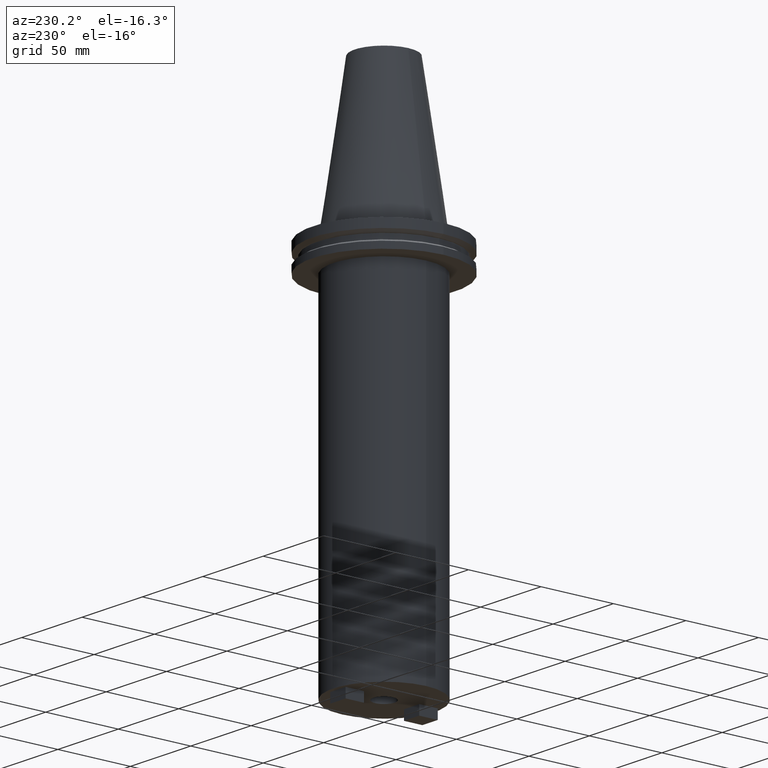
[diagram: clean part render]
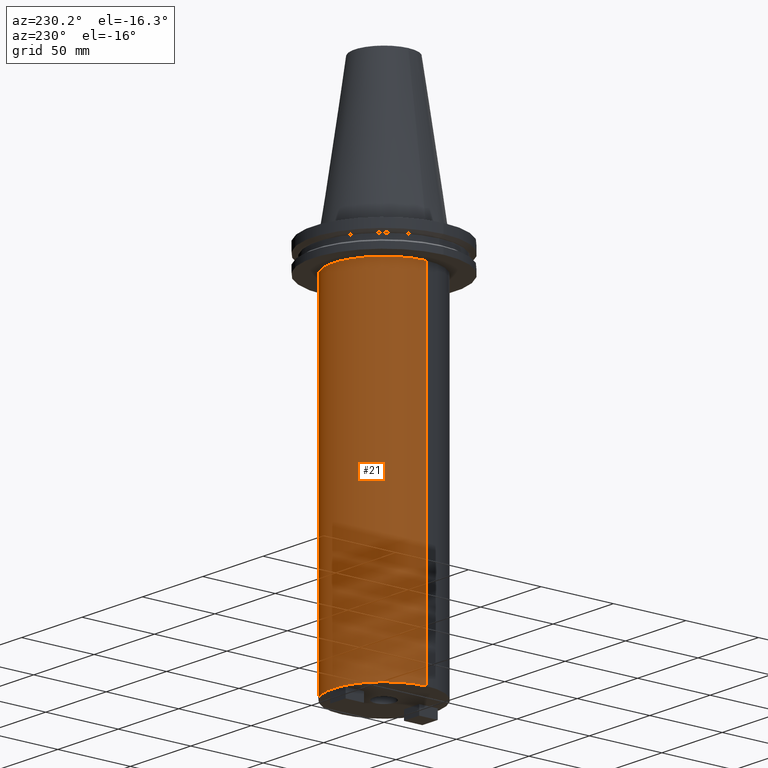
[diagram: same view with one face highlighted and labeled with its STEP entity id]
A machine part, auxiliary view. The second image highlights one B-rep face of the part: STEP entity #21.
In plain terms, the highlighted cylindrical surface (partial cylindrical patch) has radius 34.925 mm, axis along (-0, -0, 1).
Its self-contained STEP definition (entity closure, byte-faithful):
#2 = VERTEX_POINT ( 'NONE', #973 ) ;
#21 = ADVANCED_FACE ( 'NONE', ( #560 ), #796, .T. ) ;
#34 = ORIENTED_EDGE ( 'NONE', *, *, #977, .T. ) ;
#48 = CIRCLE ( 'NONE', #109, 34.92499999999999716 ) ;
#77 = CARTESIAN_POINT ( 'NONE',  ( 0.000000000000000000, 0.000000000000000000, -254.0000000000000000 ) ) ;
#109 = AXIS2_PLACEMENT_3D ( 'NONE', #77, #395, #948 ) ;
#132 = DIRECTION ( 'NONE',  ( -0.000000000000000000, -0.000000000000000000, 1.000000000000000000 ) ) ;
#139 = VERTEX_POINT ( 'NONE', #815 ) ;
#141 = DIRECTION ( 'NONE',  ( 1.000000000000000000, 0.000000000000000000, 0.000000000000000000 ) ) ;
#206 = LINE ( 'NONE', #519, #1007 ) ;
#222 = DIRECTION ( 'NONE',  ( -0.000000000000000000, -0.000000000000000000, 1.000000000000000000 ) ) ;
#318 = VERTEX_POINT ( 'NONE', #1008 ) ;
#325 = CARTESIAN_POINT ( 'NONE',  ( 0.000000000000000000, 0.000000000000000000, 101.5999999999999943 ) ) ;
#395 = DIRECTION ( 'NONE',  ( -0.000000000000000000, -0.000000000000000000, 1.000000000000000000 ) ) ;
#411 = EDGE_LOOP ( 'NONE', ( #34, #480, #728, #704 ) ) ;
#480 = ORIENTED_EDGE ( 'NONE', *, *, #907, .T. ) ;
#519 = CARTESIAN_POINT ( 'NONE',  ( -34.92499999999999716, 4.277078946022130887E-15, 101.5999999999999943 ) ) ;
#525 = CARTESIAN_POINT ( 'NONE',  ( -34.92499999999999716, 4.277078946022130887E-15, -254.0000000000000000 ) ) ;
#543 = CARTESIAN_POINT ( 'NONE',  ( 0.000000000000000000, 0.000000000000000000, -19.04999999999999716 ) ) ;
#550 = DIRECTION ( 'NONE',  ( -0.000000000000000000, -0.000000000000000000, 1.000000000000000000 ) ) ;
#560 = FACE_OUTER_BOUND ( 'NONE', #411, .T. ) ;
#565 = AXIS2_PLACEMENT_3D ( 'NONE', #543, #222, #141 ) ;
#618 = VECTOR ( 'NONE', #132, 1000.000000000000000 ) ;
#627 = CIRCLE ( 'NONE', #565, 34.92499999999999716 ) ;
#651 = VERTEX_POINT ( 'NONE', #525 ) ;
#704 = ORIENTED_EDGE ( 'NONE', *, *, #806, .F. ) ;
#728 = ORIENTED_EDGE ( 'NONE', *, *, #928, .F. ) ;
#754 = CARTESIAN_POINT ( 'NONE',  ( 34.92499999999999716, 0.000000000000000000, 101.5999999999999943 ) ) ;
#759 = AXIS2_PLACEMENT_3D ( 'NONE', #325, #550, #803 ) ;
#796 = CYLINDRICAL_SURFACE ( 'NONE', #759, 34.92499999999999716 ) ;
#803 = DIRECTION ( 'NONE',  ( 1.000000000000000000, 0.000000000000000000, 0.000000000000000000 ) ) ;
#806 = EDGE_CURVE ( 'NONE', #318, #2, #997, .T. ) ;
#815 = CARTESIAN_POINT ( 'NONE',  ( -34.92499999999999716, 4.277078946022130887E-15, -19.04999999999999716 ) ) ;
#835 = DIRECTION ( 'NONE',  ( -0.000000000000000000, -0.000000000000000000, 1.000000000000000000 ) ) ;
#907 = EDGE_CURVE ( 'NONE', #651, #139, #206, .T. ) ;
#928 = EDGE_CURVE ( 'NONE', #2, #139, #627, .T. ) ;
#948 = DIRECTION ( 'NONE',  ( 1.000000000000000000, 0.000000000000000000, 0.000000000000000000 ) ) ;
#973 = CARTESIAN_POINT ( 'NONE',  ( 34.92499999999999716, 0.000000000000000000, -19.04999999999999716 ) ) ;
#977 = EDGE_CURVE ( 'NONE', #318, #651, #48, .T. ) ;
#997 = LINE ( 'NONE', #754, #618 ) ;
#1007 = VECTOR ( 'NONE', #835, 1000.000000000000000 ) ;
#1008 = CARTESIAN_POINT ( 'NONE',  ( 34.92499999999999716, 0.000000000000000000, -254.0000000000000000 ) ) ;